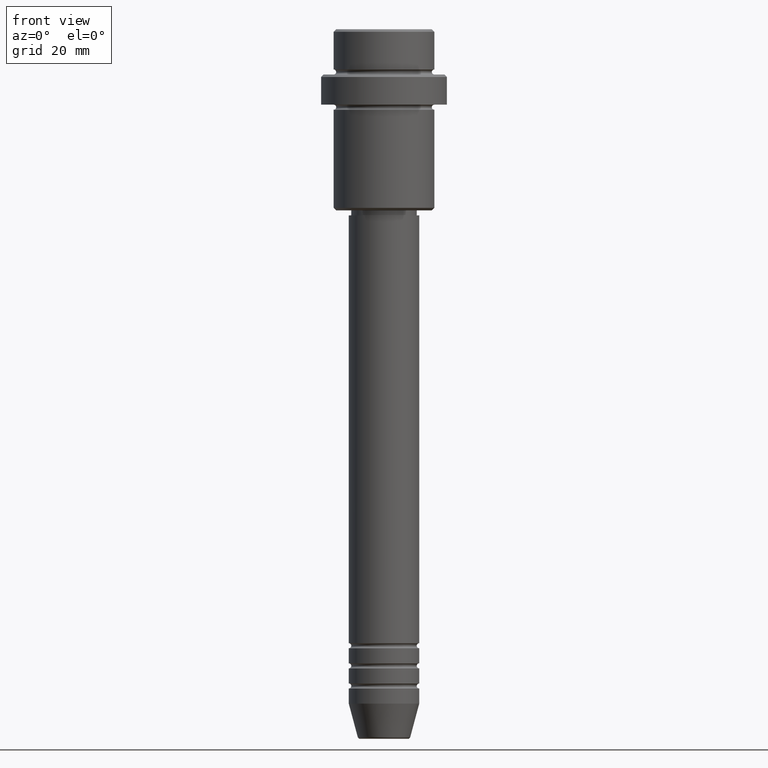
[diagram: clean part render]
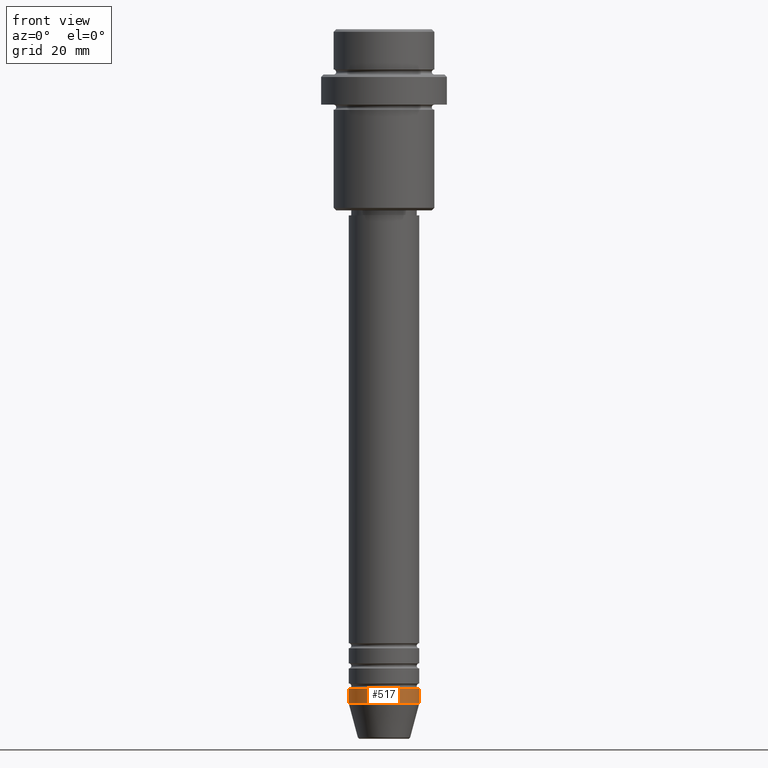
[diagram: same view with one face highlighted and labeled with its STEP entity id]
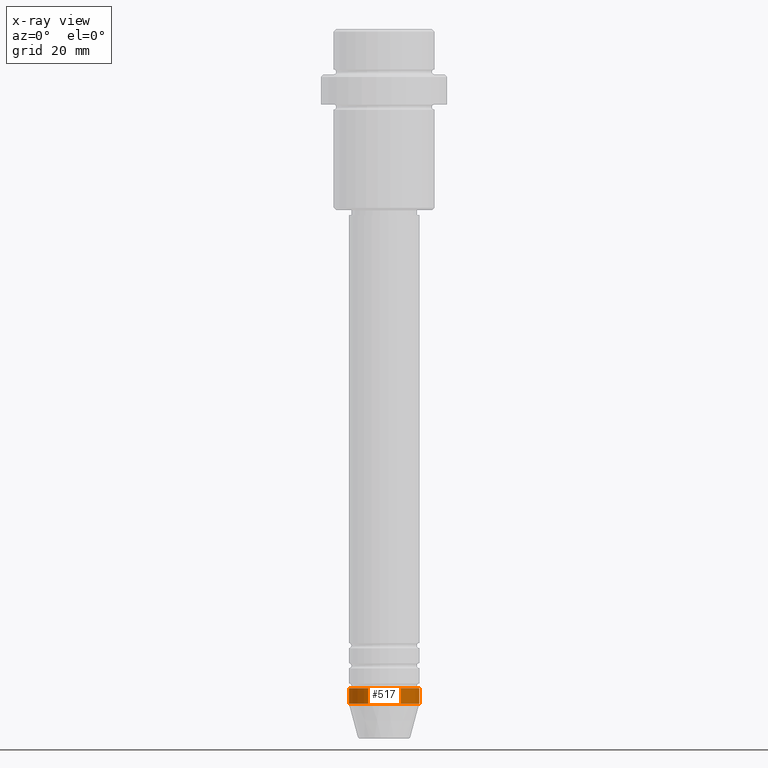
[diagram: x-ray of the same camera — body ghosted, the highlighted face saturated]
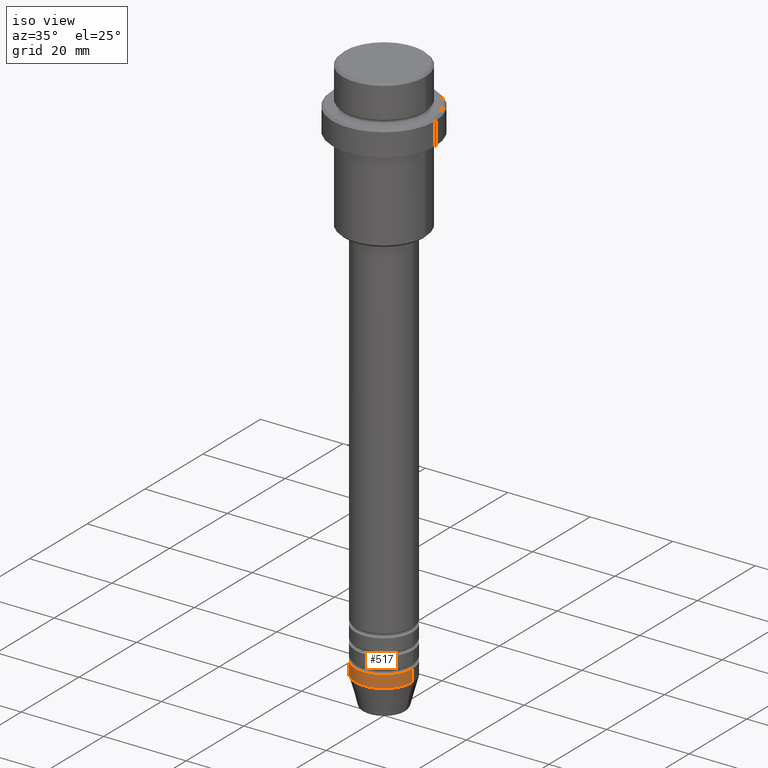
[diagram: same view with one face highlighted and labeled with its STEP entity id]
A machine part, front view. The second image highlights one B-rep face of the part: STEP entity #517.
The next image is the same camera in x-ray: the body ghosted, the highlighted face saturated — about 0% of this face is hidden behind the body in this view.
A second angle (iso view) of the same face is appended — the face is thin or edge-on in the first view.
In plain terms, the highlighted cylindrical surface (edge-blend (fillet) strip) has radius 7 mm, axis along (-0, -0, 1).
Its self-contained STEP definition (entity closure, byte-faithful):
#20 = DIRECTION ( 'NONE',  ( 1.000000000000000000, 0.000000000000000000, 0.000000000000000000 ) ) ;
#95 = EDGE_CURVE ( 'NONE', #1253, #798, #1111, .T. ) ;
#142 = DIRECTION ( 'NONE',  ( -0.000000000000000000, -0.000000000000000000, 1.000000000000000000 ) ) ;
#192 = ORIENTED_EDGE ( 'NONE', *, *, #1254, .F. ) ;
#214 = DIRECTION ( 'NONE',  ( -0.000000000000000000, -0.000000000000000000, 1.000000000000000000 ) ) ;
#224 = VECTOR ( 'NONE', #142, 1000.000000000000000 ) ;
#228 = EDGE_CURVE ( 'NONE', #1247, #1253, #967, .T. ) ;
#248 = CYLINDRICAL_SURFACE ( 'NONE', #1036, 7.000000000000000000 ) ;
#275 = CARTESIAN_POINT ( 'NONE',  ( -7.000000000000000000, 8.572527594031473190E-16, -130.9999999999999716 ) ) ;
#331 = CARTESIAN_POINT ( 'NONE',  ( 7.000000000000000000, 0.000000000000000000, -133.9999999999999716 ) ) ;
#368 = DIRECTION ( 'NONE',  ( -0.000000000000000000, -0.000000000000000000, 1.000000000000000000 ) ) ;
#384 = CARTESIAN_POINT ( 'NONE',  ( -7.000000000000000000, 8.572527594031473190E-16, 0.000000000000000000 ) ) ;
#388 = ORIENTED_EDGE ( 'NONE', *, *, #1359, .F. ) ;
#454 = DIRECTION ( 'NONE',  ( -0.000000000000000000, -0.000000000000000000, 1.000000000000000000 ) ) ;
#459 = CARTESIAN_POINT ( 'NONE',  ( 0.000000000000000000, 0.000000000000000000, -130.9999999999999716 ) ) ;
#517 = ADVANCED_FACE ( 'NONE', ( #989 ), #248, .T. ) ;
#698 = DIRECTION ( 'NONE',  ( 1.000000000000000000, 0.000000000000000000, 0.000000000000000000 ) ) ;
#704 = AXIS2_PLACEMENT_3D ( 'NONE', #459, #214, #888 ) ;
#778 = CARTESIAN_POINT ( 'NONE',  ( 7.000000000000000000, 0.000000000000000000, 0.000000000000000000 ) ) ;
#798 = VERTEX_POINT ( 'NONE', #841 ) ;
#840 = ORIENTED_EDGE ( 'NONE', *, *, #95, .T. ) ;
#841 = CARTESIAN_POINT ( 'NONE',  ( 7.000000000000000000, 0.000000000000000000, -130.9999999999999716 ) ) ;
#888 = DIRECTION ( 'NONE',  ( 1.000000000000000000, 0.000000000000000000, 0.000000000000000000 ) ) ;
#909 = VERTEX_POINT ( 'NONE', #275 ) ;
#912 = CARTESIAN_POINT ( 'NONE',  ( 0.000000000000000000, 0.000000000000000000, -133.9999999999999716 ) ) ;
#919 = EDGE_LOOP ( 'NONE', ( #388, #988, #840, #192 ) ) ;
#967 = CIRCLE ( 'NONE', #1263, 7.000000000000000000 ) ;
#982 = CARTESIAN_POINT ( 'NONE',  ( 0.000000000000000000, 0.000000000000000000, 0.000000000000000000 ) ) ;
#988 = ORIENTED_EDGE ( 'NONE', *, *, #228, .T. ) ;
#989 = FACE_OUTER_BOUND ( 'NONE', #919, .T. ) ;
#1036 = AXIS2_PLACEMENT_3D ( 'NONE', #982, #454, #20 ) ;
#1039 = VECTOR ( 'NONE', #368, 1000.000000000000000 ) ;
#1111 = LINE ( 'NONE', #778, #224 ) ;
#1235 = DIRECTION ( 'NONE',  ( -0.000000000000000000, -0.000000000000000000, 1.000000000000000000 ) ) ;
#1247 = VERTEX_POINT ( 'NONE', #1294 ) ;
#1253 = VERTEX_POINT ( 'NONE', #331 ) ;
#1254 = EDGE_CURVE ( 'NONE', #909, #798, #1336, .T. ) ;
#1263 = AXIS2_PLACEMENT_3D ( 'NONE', #912, #1235, #698 ) ;
#1294 = CARTESIAN_POINT ( 'NONE',  ( -7.000000000000000000, 8.572527594031473190E-16, -133.9999999999999716 ) ) ;
#1336 = CIRCLE ( 'NONE', #704, 7.000000000000000000 ) ;
#1346 = LINE ( 'NONE', #384, #1039 ) ;
#1359 = EDGE_CURVE ( 'NONE', #1247, #909, #1346, .T. ) ;